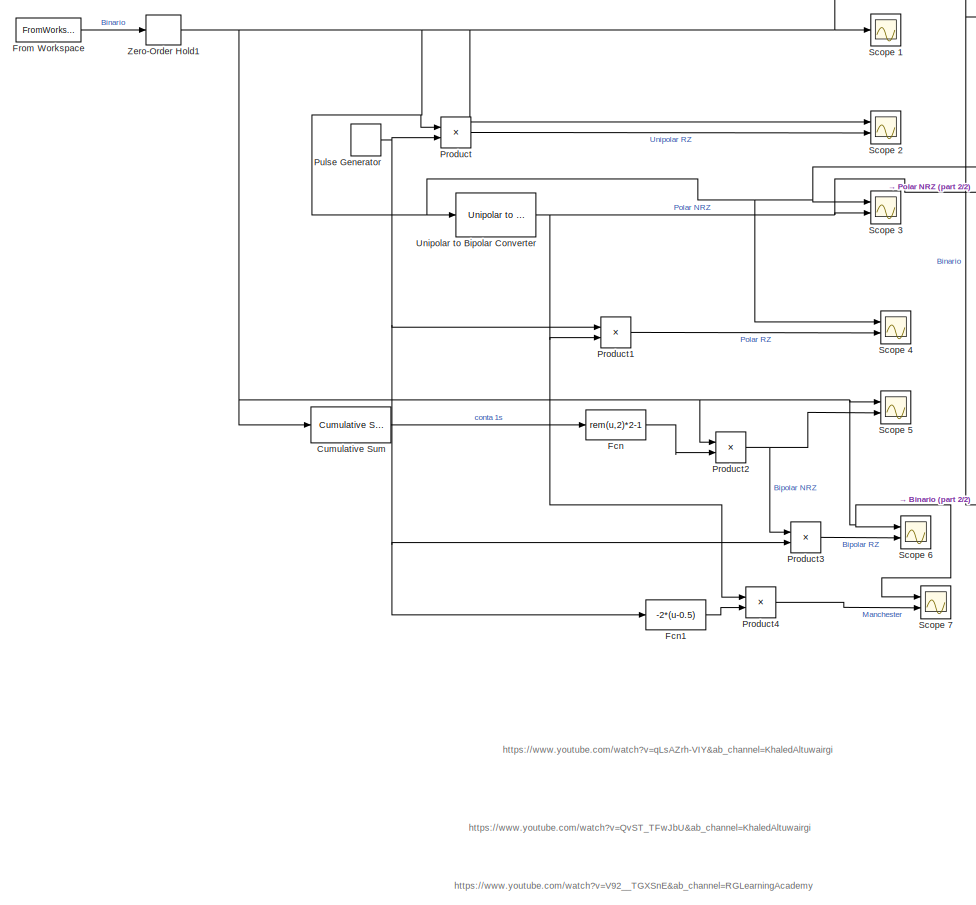
[diagram: root canvas - part 1/2, left side, full height]
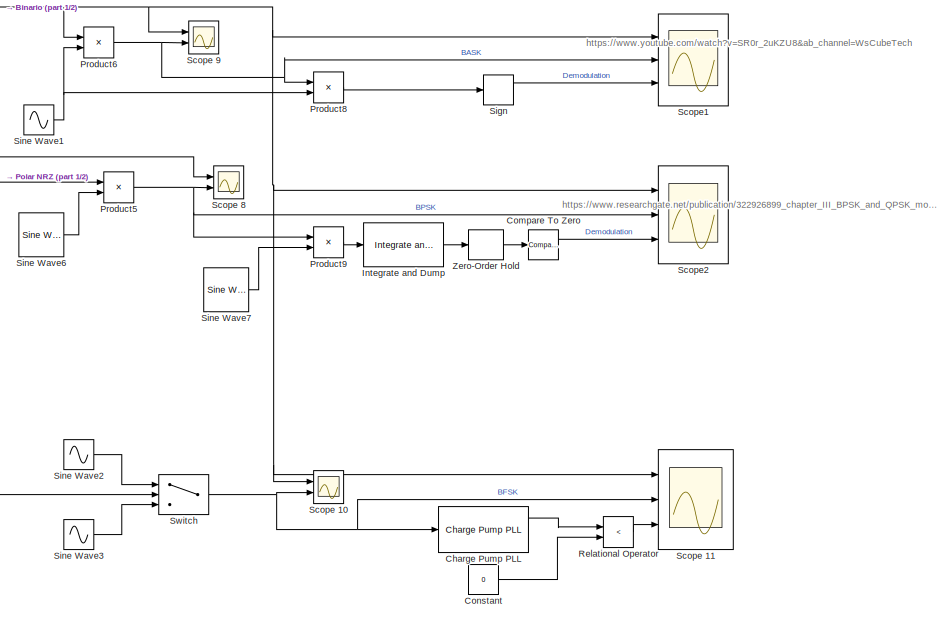
[diagram: root canvas - part 2/2, middle right region]
MODEL slx_58b0e223fd00
KIND model
CONFIG AbsTol = auto
CONFIG EnableMultiTasking = off
CONFIG FixedStep = auto
CONFIG MaxStep = auto
CONFIG MinStep = auto
CONFIG RelTol = 1e-3
CONFIG SampleTimeConstraint = Unconstrained
CONFIG Solver = VariableStepAuto
CONFIG SolverName = VariableStepAuto
CONFIG StartTime = 0.0
CONFIG StopTime = 10
BLOCK [Reference] Charge Pump PLL  REF=commsynccomp2/Charge Pump
PLL
  Ports = [1, 3]
  SourceBlock = commsynccomp2/Charge Pump\nPLL
  SourceProductBaseCode = CM
  SourceProductName = Communications Toolbox
  SourceType = Charge Pump PLL
BLOCK [Reference] Compare To Zero  REF=simulink/Logic and Bit
Operations/Compare
To Zero
  Ports = [1, 1]
  SourceBlock = simulink/Logic and Bit\nOperations/Compare\nTo Zero
  SourceProductBaseCode = SL
  SourceProductName = Simulink
  SourceType = Compare To Zero
BLOCK [Constant] Constant
  Value = 0
BLOCK [Reference] Cumulative Sum  REF=dspmathops/Cumulative
Sum
  Ports = [1, 1]
  SourceBlock = dspmathops/Cumulative\nSum
  SourceProductBaseCode = DS
  SourceProductName = DSP System Toolbox
  SourceType = Cumulative Sum
  UserDataPersistent = on
BLOCK [Fcn] Fcn
  Expr = rem(u,2)*2-1
BLOCK [Fcn] Fcn1
  Expr = -2*(u-0.5)
BLOCK [FromWorkspace] From Workspace
  SampleTime = 0
  VariableName = time_value
  ZeroCross = on
BLOCK [Reference] Integrate and Dump  REF=commfilt2/Integrate
and Dump
  Ports = [1, 1]
  SourceBlock = commfilt2/Integrate\nand Dump
  SourceProductBaseCode = CM
  SourceProductName = Communications Toolbox
  SourceType = Integrate and Dump
BLOCK [Product] Product
  InputSameDT = off
  OutDataTypeStr = Inherit: Inherit via internal rule
  Ports = [2, 1]
  RndMeth = Floor
  SaturateOnIntegerOverflow = off
BLOCK [Product] Product1
  InputSameDT = off
  OutDataTypeStr = Inherit: Inherit via internal rule
  Ports = [2, 1]
  RndMeth = Floor
  SaturateOnIntegerOverflow = off
BLOCK [Product] Product2
  InputSameDT = off
  OutDataTypeStr = Inherit: Inherit via internal rule
  Ports = [2, 1]
  RndMeth = Floor
  SaturateOnIntegerOverflow = off
BLOCK [Product] Product3
  InputSameDT = off
  OutDataTypeStr = Inherit: Inherit via internal rule
  Ports = [2, 1]
  RndMeth = Floor
  SaturateOnIntegerOverflow = off
BLOCK [Product] Product4
  InputSameDT = off
  OutDataTypeStr = Inherit: Inherit via internal rule
  Ports = [2, 1]
  RndMeth = Floor
  SaturateOnIntegerOverflow = off
BLOCK [Product] Product5
  InputSameDT = off
  OutDataTypeStr = Inherit: Inherit via internal rule
  Ports = [2, 1]
  RndMeth = Floor
  SaturateOnIntegerOverflow = off
BLOCK [Product] Product6
  InputSameDT = off
  OutDataTypeStr = Inherit: Inherit via internal rule
  Ports = [2, 1]
  RndMeth = Floor
  SaturateOnIntegerOverflow = off
BLOCK [Product] Product8
  InputSameDT = off
  OutDataTypeStr = Inherit: Inherit via internal rule
  Ports = [2, 1]
  RndMeth = Floor
  SaturateOnIntegerOverflow = off
BLOCK [Product] Product9
  InputSameDT = off
  OutDataTypeStr = Inherit: Inherit via internal rule
  Ports = [2, 1]
  RndMeth = Floor
  SaturateOnIntegerOverflow = off
BLOCK [DiscretePulseGenerator] Pulse Generator
  Period = 1
  Ports = [0, 1]
  PulseType = Time based
  PulseWidth = 50
BLOCK [RelationalOperator] Relational Operator
  InputSameDT = off
  Operator = <
  OutDataTypeStr = boolean
  Ports = [2, 1]
  RndMeth = Simplest
BLOCK [Scope] Scope 1
  Floating = off
  NumInputPorts = 1
  Ports = [1]
  ScopeSpecificationString = Simulink.scopes.TimeScopeBlockCfg('CurrentConfiguration', extmgr.ConfigurationSet(extmgr.Configuration('Core','General UI',true),extmgr.Configuration('Core','Source UI',true),extmgr.Configuration('Sources','WiredSimulink',true),extmgr.Configuration('Visuals','Time Domain',true,'SerializedDisplays',{struct('MinYLimReal','-0.125','MaxYLimReal','1.125','YLabelReal','','MinYLimMag','0.00000','MaxYLimM...<+1344ch>
BLOCK [Scope] Scope 10
  Floating = off
  NumInputPorts = 2
  Ports = [2]
  ScopeSpecificationString = Simulink.scopes.TimeScopeBlockCfg('CurrentConfiguration', extmgr.ConfigurationSet(extmgr.Configuration('Core','General UI',true),extmgr.Configuration('Core','Source UI',true),extmgr.Configuration('Sources','WiredSimulink',true,'DataLoggingVariableName','ScopeData9'),extmgr.Configuration('Visuals','Time Domain',true,'SerializedDisplays',{struct('MinYLimReal','-0.125','MaxYLimReal','1.125','YLabelRe...<+2016ch>
BLOCK [Scope] Scope 11
  Floating = off
  NumInputPorts = 3
  Ports = [3]
  ScopeSpecificationString = Simulink.scopes.TimeScopeBlockCfg('CurrentConfiguration', extmgr.ConfigurationSet(extmgr.Configuration('Core','General UI',true),extmgr.Configuration('Core','Source UI',true),extmgr.Configuration('Sources','WiredSimulink',true,'DataLoggingVariableName','ScopeData10'),extmgr.Configuration('Visuals','Time Domain',true,'SerializedDisplays',{struct('MinYLimReal','-0.125','MaxYLimReal','1.125','YLabelR...<+2726ch>
BLOCK [Scope] Scope 2
  Floating = off
  NumInputPorts = 2
  Ports = [2]
  ScopeSpecificationString = Simulink.scopes.TimeScopeBlockCfg('CurrentConfiguration', extmgr.ConfigurationSet(extmgr.Configuration('Core','General UI',true),extmgr.Configuration('Core','Source UI',true),extmgr.Configuration('Sources','WiredSimulink',true,'DataLoggingVariableName','ScopeData1'),extmgr.Configuration('Visuals','Time Domain',true,'SerializedDisplays',{struct('MinYLimReal','-0.125','MaxYLimReal','1.125','YLabelRe...<+1975ch>
BLOCK [Scope] Scope 3
  Floating = off
  NumInputPorts = 2
  Ports = [2]
  ScopeSpecificationString = Simulink.scopes.TimeScopeBlockCfg('CurrentConfiguration', extmgr.ConfigurationSet(extmgr.Configuration('Core','General UI',true),extmgr.Configuration('Core','Source UI',true),extmgr.Configuration('Sources','WiredSimulink',true,'DataLoggingVariableName','ScopeData2'),extmgr.Configuration('Visuals','Time Domain',true,'SerializedDisplays',{struct('MinYLimReal','-0.125','MaxYLimReal','1.125','YLabelRe...<+1971ch>
BLOCK [Scope] Scope 4
  Floating = off
  NumInputPorts = 2
  Ports = [2]
  ScopeSpecificationString = Simulink.scopes.TimeScopeBlockCfg('CurrentConfiguration', extmgr.ConfigurationSet(extmgr.Configuration('Core','General UI',true),extmgr.Configuration('Core','Source UI',true),extmgr.Configuration('Sources','WiredSimulink',true,'DataLoggingVariableName','ScopeData3'),extmgr.Configuration('Visuals','Time Domain',true,'SerializedDisplays',{struct('MinYLimReal','-0.125','MaxYLimReal','1.125','YLabelRe...<+1970ch>
BLOCK [Scope] Scope 5
  Floating = off
  NumInputPorts = 2
  Ports = [2]
  ScopeSpecificationString = Simulink.scopes.TimeScopeBlockCfg('CurrentConfiguration', extmgr.ConfigurationSet(extmgr.Configuration('Core','General UI',true),extmgr.Configuration('Core','Source UI',true),extmgr.Configuration('Sources','WiredSimulink',true,'DataLoggingVariableName','ScopeData4'),extmgr.Configuration('Visuals','Time Domain',true,'SerializedDisplays',{struct('MinYLimReal','-0.125','MaxYLimReal','1.125','YLabelRe...<+1973ch>
BLOCK [Scope] Scope 6
  Floating = off
  NumInputPorts = 2
  Ports = [2]
  ScopeSpecificationString = Simulink.scopes.TimeScopeBlockCfg('CurrentConfiguration', extmgr.ConfigurationSet(extmgr.Configuration('Core','General UI',true),extmgr.Configuration('Core','Source UI',true),extmgr.Configuration('Sources','WiredSimulink',true,'DataLoggingVariableName','ScopeData5'),extmgr.Configuration('Visuals','Time Domain',true,'SerializedDisplays',{struct('MinYLimReal','-0.125','MaxYLimReal','1.125','YLabelRe...<+1972ch>
BLOCK [Scope] Scope 7
  Floating = off
  NumInputPorts = 2
  Ports = [2]
  ScopeSpecificationString = Simulink.scopes.TimeScopeBlockCfg('CurrentConfiguration', extmgr.ConfigurationSet(extmgr.Configuration('Core','General UI',true),extmgr.Configuration('Core','Source UI',true),extmgr.Configuration('Sources','WiredSimulink',true,'DataLoggingVariableName','ScopeData6'),extmgr.Configuration('Visuals','Time Domain',true,'SerializedDisplays',{struct('MinYLimReal','-0.125','MaxYLimReal','1.125','YLabelRe...<+1972ch>
BLOCK [Scope] Scope 8
  Floating = off
  NumInputPorts = 2
  Ports = [2]
  ScopeSpecificationString = Simulink.scopes.TimeScopeBlockCfg('CurrentConfiguration', extmgr.ConfigurationSet(extmgr.Configuration('Core','General UI',true),extmgr.Configuration('Core','Source UI',true),extmgr.Configuration('Sources','WiredSimulink',true,'DataLoggingVariableName','ScopeData7'),extmgr.Configuration('Visuals','Time Domain',true,'SerializedDisplays',{struct('MinYLimReal','-0.125','MaxYLimReal','1.125','YLabelRe...<+1967ch>
BLOCK [Scope] Scope 9
  Floating = off
  NumInputPorts = 2
  Ports = [2]
  ScopeSpecificationString = Simulink.scopes.TimeScopeBlockCfg('CurrentConfiguration', extmgr.ConfigurationSet(extmgr.Configuration('Core','General UI',true),extmgr.Configuration('Core','Source UI',true),extmgr.Configuration('Sources','WiredSimulink',true,'DataLoggingVariableName','ScopeData8'),extmgr.Configuration('Visuals','Time Domain',true,'SerializedDisplays',{struct('MinYLimReal','-0.125','MaxYLimReal','1.125','YLabelRe...<+1966ch>
BLOCK [Scope] Scope1
  Floating = off
  NumInputPorts = 3
  Ports = [3]
  ScopeSpecificationString = Simulink.scopes.TimeScopeBlockCfg('CurrentConfiguration', extmgr.ConfigurationSet(extmgr.Configuration('Core','General UI',true),extmgr.Configuration('Core','Source UI',true),extmgr.Configuration('Sources','WiredSimulink',true,'DataLoggingVariableName','ScopeData1'),extmgr.Configuration('Visuals','Time Domain',true,'SerializedDisplays',{struct('MinYLimReal','-0.125','MaxYLimReal','1.125','YLabelRe...<+2730ch>
BLOCK [Scope] Scope2
  Floating = off
  NumInputPorts = 3
  Ports = [3]
  ScopeSpecificationString = Simulink.scopes.TimeScopeBlockCfg('CurrentConfiguration', extmgr.ConfigurationSet(extmgr.Configuration('Core','General UI',true),extmgr.Configuration('Core','Source UI',true),extmgr.Configuration('Sources','WiredSimulink',true,'DataLoggingVariableName','ScopeData2'),extmgr.Configuration('Visuals','Time Domain',true,'SerializedDisplays',{struct('MinYLimReal','-0.125','MaxYLimReal','1.125','YLabelRe...<+2747ch>
BLOCK [Signum] Sign
BLOCK [Sin] Sine Wave1
  Frequency = 2*pi*2
  Ports = [0, 1]
  SampleTime = 0
BLOCK [Sin] Sine Wave2
  Frequency = 2*pi*4
  Ports = [0, 1]
  SampleTime = 0
BLOCK [Sin] Sine Wave3
  Frequency = 2*pi*12
  Ports = [0, 1]
  SampleTime = 0
BLOCK [Reference] Sine Wave6  REF=dspsrcs4/Sine Wave
  Ports = [0, 1]
  SourceBlock = dspsrcs4/Sine Wave
  SourceProductBaseCode = DS
  SourceProductName = DSP System Toolbox
  SourceType = Sine Wave
BLOCK [Reference] Sine Wave7  REF=dspsrcs4/Sine Wave
  Ports = [0, 1]
  SourceBlock = dspsrcs4/Sine Wave
  SourceProductBaseCode = DS
  SourceProductName = DSP System Toolbox
  SourceType = Sine Wave
BLOCK [Switch] Switch
  Criteria = u2 > Threshold
  InputSameDT = off
  SaturateOnIntegerOverflow = off
  Threshold = 0.5
BLOCK [Reference] Unipolar to Bipolar Converter  REF=commutil2/Unipolar to
Bipolar
Converter
  Ports = [1, 1]
  SourceBlock = commutil2/Unipolar to\nBipolar\nConverter
  SourceProductBaseCode = CM
  SourceProductName = Communications Toolbox
  SourceType = Unipolar to Bipolar Converter
BLOCK [ZeroOrderHold] Zero-Order Hold
  SampleTime = -1
BLOCK [ZeroOrderHold] Zero-Order Hold1
  SampleTime = -1
ANNOTATION (root): https://www.researchgate.net/publication/322926899_chapter_III_BPSK_and_QPSK_modulation_and_demodulation_with_Simulink
ANNOTATION (root): https://www.youtube.com/watch?v=QvST_TFwJbU&ab_channel=KhaledAltuwairgi
ANNOTATION (root): https://www.youtube.com/watch?v=SR0r_2uKZU8&ab_channel=WsCubeTech
ANNOTATION (root): https://www.youtube.com/watch?v=V92__TGXSnE&ab_channel=RGLearningAcademy
ANNOTATION (root): https://www.youtube.com/watch?v=qLsAZrh-VIY&ab_channel=KhaledAltuwairgi
LINE Charge Pump PLL:1 -> Relational Operator:1
LINE Compare To Zero:1 -> Scope2:3
LINE Constant:1 -> Relational Operator:2
LINE Cumulative Sum:1 -> Fcn:1
LINE Fcn1:1 -> Product4:2
LINE Fcn:1 -> Product2:2
LINE From Workspace:1 -> Zero-Order Hold1:1
LINE Integrate and Dump:1 -> Zero-Order Hold:1
LINE Product1:1 -> Scope 4:2
NET Product2:1 -> Product3:1, Scope 5:2
LINE Product3:1 -> Scope 6:2
LINE Product4:1 -> Scope 7:2
NET Product5:1 -> Product9:1, Scope 8:2, Scope2:2
NET Product6:1 -> Product8:1, Scope 9:2, Scope1:2
LINE Product8:1 -> Sign:1
LINE Product9:1 -> Integrate and Dump:1
LINE Product:1 -> Scope 2:2
NET Pulse Generator:1 -> Fcn1:1, Product1:1, Product3:2, Product:2
LINE Relational Operator:1 -> Scope 11:3
LINE Sign:1 -> Scope1:3
NET Sine Wave1:1 -> Product6:2, Product8:2
LINE Sine Wave2:1 -> Switch:1
LINE Sine Wave3:1 -> Switch:3
LINE Sine Wave6:1 -> Product5:2
LINE Sine Wave7:1 -> Product9:2
NET Switch:1 -> Charge Pump PLL:1, Scope 10:2, Scope 11:2
NET Unipolar to Bipolar Converter:1 -> Product1:2, Product4:1, Product5:1, Scope 3:2
NET Zero-Order Hold1:1 -> Cumulative Sum:1, Product2:1, Product6:1, Product:1, Scope 10:1, Scope 11:1, Scope 1:1, Scope 2:1, Scope 3:1, Scope 4:1, Scope 5:1, Scope 6:1, Scope 7:1, Scope 8:1, Scope 9:1, Scope1:1, Scope2:1, Switch:2, Unipolar to Bipolar Converter:1
LINE Zero-Order Hold:1 -> Compare To Zero:1
note: NET lines group one-source signal fan-out (src -> all destinations, sorted); 1:1 wires keep LINE
